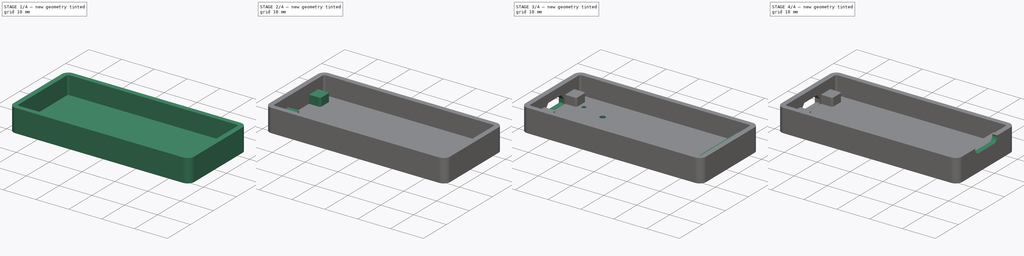
[diagram: build sequence overview — one tinted view per stage of 4, left to right]
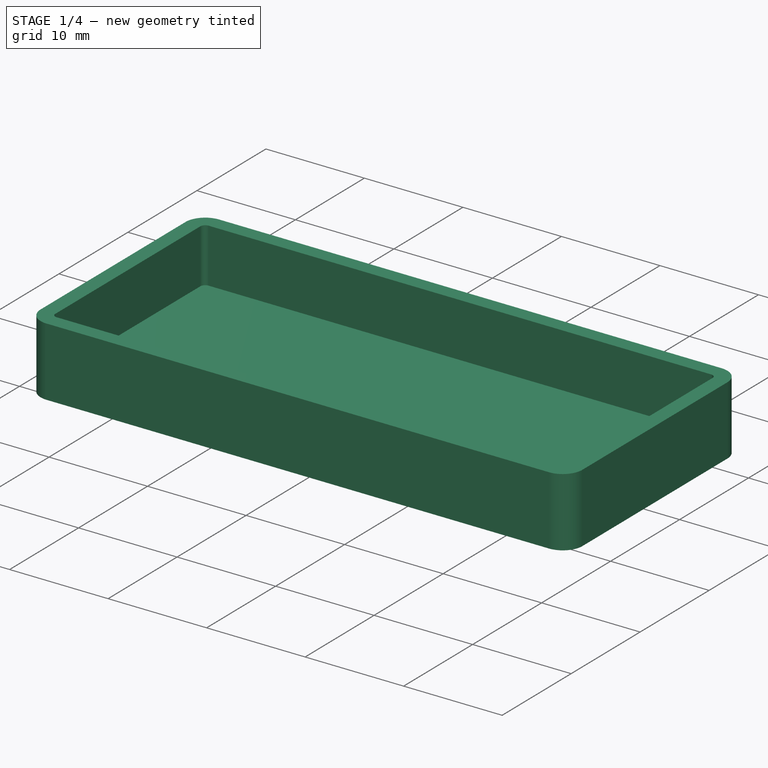
[diagram: stage 1 of 4 — iso view after this stage's code; geometry added in this stage tinted green]
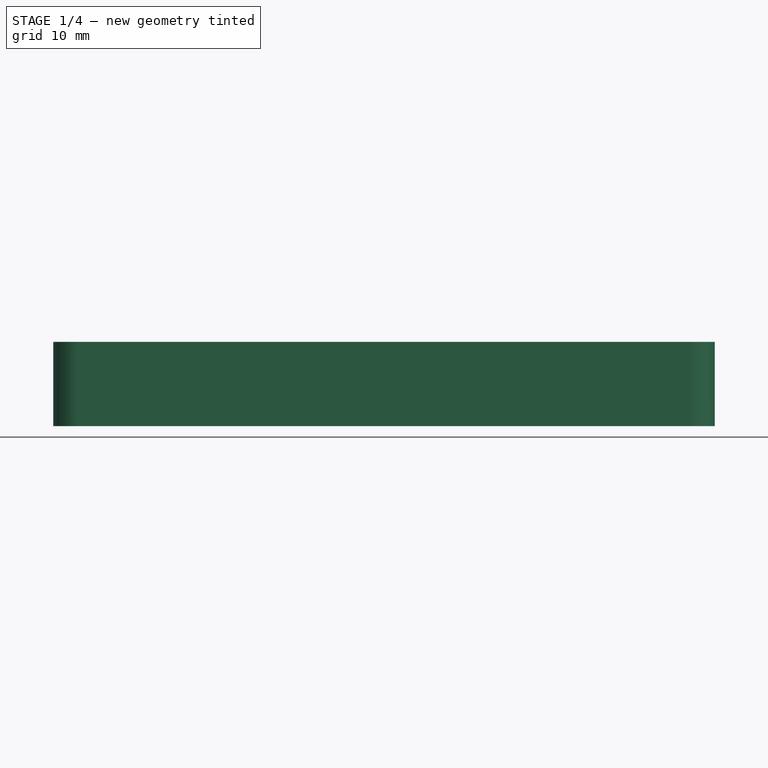
[diagram: stage 1 of 4 — front view after this stage's code; geometry added in this stage tinted green]
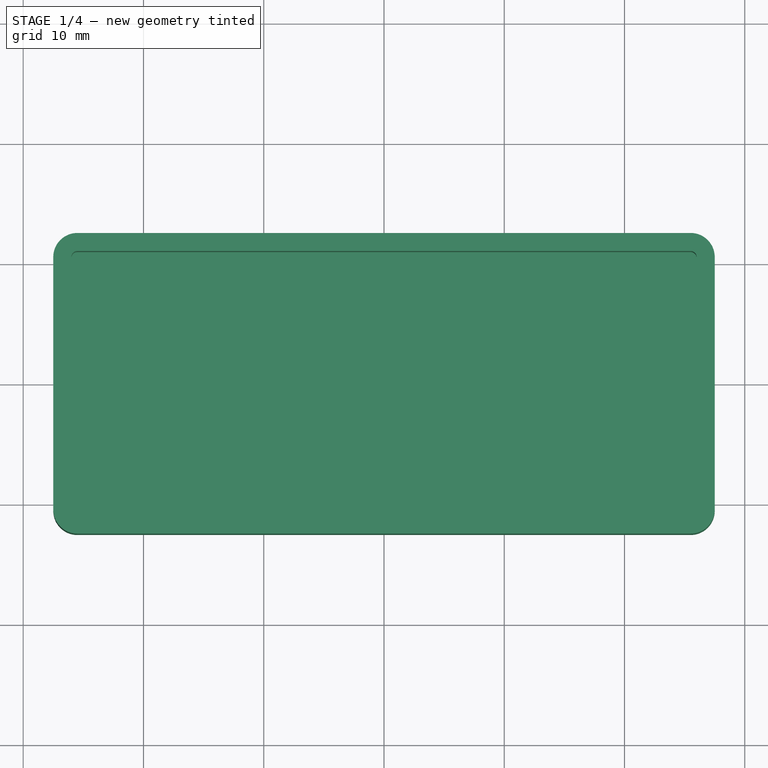
[diagram: stage 1 of 4 — top view after this stage's code; geometry added in this stage tinted green]
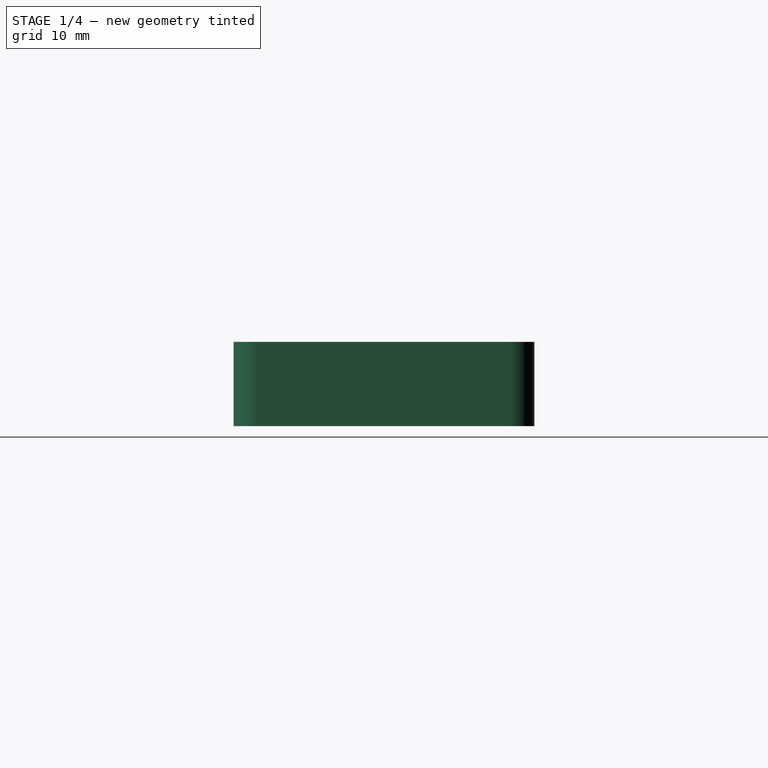
[diagram: stage 1 of 4 — right view after this stage's code; geometry added in this stage tinted green]
FCSTD DOCUMENT  (FreeCAD 0.19RUnknown)
Label: enclosure
License: All rights reserved
LicenseURL: http://en.wikipedia.org/wiki/All_rights_reserved
objects: Sketcher::SketchObject×8, PartDesign::Pad×4, PartDesign::Pocket×4, PartDesign::Body×2, Spreadsheet::Sheet×1, PartDesign::Mirrored×1, PartDesign::MultiTransform×1, Part::Feature×1, PartDesign::Chamfer×1
note: 31 computed .brp shape members not serialized (recipe doc carries the construction recipe); baked Part::Feature solids carry a one-line shape summary decoded from their .brp

FEATURE [Sketcher::SketchObject] Sketch
  AttachmentOffset = pos=(0,0,-1.5) rot=(0,0,1;0rad)
  FullyConstrained = true
  MapMode = 5
  Placement = pos=(0,0,-1.5) rot=(0,0,1;0rad)
  Support = -> [XY_Plane]
  expr: .AttachmentOffset.Base.z = -1.5
  expr: Constraints[17] = Spreadsheet.B4
  expr: Constraints[18] = Spreadsheet.B5
  expr: Constraints[16] = Spreadsheet.B2
  sketch-geometry (8):
    g0: LineSegment StartX=-25.5 StartY=12.5 StartZ=0 EndX=25.5 EndY=12.5 EndZ=0
    g1: LineSegment StartX=27.5 StartY=10.5 StartZ=0 EndX=27.5 EndY=-10.5 EndZ=0
    g2: LineSegment StartX=25.5 StartY=-12.5 StartZ=0 EndX=-25.5 EndY=-12.5 EndZ=0
    g3: LineSegment StartX=-27.5 StartY=-10.5 StartZ=0 EndX=-27.5 EndY=10.5 EndZ=0
    g4: ArcOfCircle CenterX=-25.5 CenterY=10.5 CenterZ=0 NormalX=0 NormalY=0 NormalZ=1 AngleXU=0 Radius=2 StartAngle=1.5708 EndAngle=3.14159
    g5: ArcOfCircle CenterX=25.5 CenterY=10.5 CenterZ=0 NormalX=0 NormalY=0 NormalZ=1 AngleXU=0 Radius=2 StartAngle=0 EndAngle=1.5708
    g6: ArcOfCircle CenterX=25.5 CenterY=-10.5 CenterZ=0 NormalX=0 NormalY=0 NormalZ=1 AngleXU=0 Radius=2 StartAngle=4.71239 EndAngle=6.28319
    g7: ArcOfCircle CenterX=-25.5 CenterY=-10.5 CenterZ=0 NormalX=0 NormalY=0 NormalZ=1 AngleXU=0 Radius=2 StartAngle=3.14159 EndAngle=4.71239
  constraints (19):
    c: Horizontal(g0)
    c: Horizontal(g2)
    c: Vertical(g1)
    c: Vertical(g3)
    c: Tangent(g3,g4) = 1.5708
    c: Tangent(g0,g4) = 1.5708
    c: Tangent(g0,g5) = 1.5708
    c: Tangent(g1,g5) = 1.5708
    c: Tangent(g1,g6) = 1.5708
    c: Tangent(g2,g6) = 1.5708
    c: Tangent(g2,g7) = 1.5708
    c: Tangent(g3,g7) = 1.5708
    c: Symmetric(g4,g6,g-1)
    c: Equal(g4,g5)
    c: Equal(g5,g6)
    c: Equal(g6,g7)
    c: Radius(g4) = 2
    c: DistanceX(g3,g1) = 55
    c: DistanceY(g2,g0) = 25
FEATURE [PartDesign::Pad] Pad  label="Body"
  Direction = (1,1,1)
  Length = 7
  Length2 = 100
  Profile = -> Sketch
  Type = 0
  expr: Length = Spreadsheet.B6
FEATURE [Sketcher::SketchObject] Sketch001
  FullyConstrained = true
  MapMode = 5
  Support = -> [XY_Plane]
  expr: Constraints[16] = Spreadsheet.B3
  sketch-geometry (8):
    g0: LineSegment StartX=-25.5 StartY=11 StartZ=0 EndX=25.5 EndY=11 EndZ=0
    g1: LineSegment StartX=26 StartY=10.5 StartZ=0 EndX=26 EndY=-10.5 EndZ=0
    g2: LineSegment StartX=25.5 StartY=-11 StartZ=0 EndX=-25.5 EndY=-11 EndZ=0
    g3: LineSegment StartX=-26 StartY=-10.5 StartZ=0 EndX=-26 EndY=10.5 EndZ=0
    g4: ArcOfCircle CenterX=-25.5 CenterY=10.5 CenterZ=0 NormalX=0 NormalY=0 NormalZ=1 AngleXU=0 Radius=0.5 StartAngle=1.5708 EndAngle=3.14159
    g5: ArcOfCircle CenterX=25.5 CenterY=10.5 CenterZ=0 NormalX=0 NormalY=0 NormalZ=1 AngleXU=0 Radius=0.5 StartAngle=1.9e-15 EndAngle=1.5708
    g6: ArcOfCircle CenterX=25.5 CenterY=-10.5 CenterZ=0 NormalX=0 NormalY=0 NormalZ=1 AngleXU=0 Radius=0.5 StartAngle=4.71239 EndAngle=6.28319
    g7: ArcOfCircle CenterX=-25.5 CenterY=-10.5 CenterZ=0 NormalX=0 NormalY=0 NormalZ=1 AngleXU=0 Radius=0.5 StartAngle=3.14159 EndAngle=4.71239
  constraints (19):
    c: Horizontal(g0)
    c: Horizontal(g2)
    c: Vertical(g1)
    c: Vertical(g3)
    c: Tangent(g3,g4) = 1.5708
    c: Tangent(g0,g4) = 1.5708
    c: Tangent(g0,g5) = 1.5708
    c: Tangent(g1,g5) = 1.5708
    c: Tangent(g1,g6) = 1.5708
    c: Tangent(g2,g6) = 1.5708
    c: Tangent(g2,g7) = 1.5708
    c: Tangent(g3,g7) = 1.5708
    c: Symmetric(g4,g6,g-1)
    c: Equal(g4,g5)
    c: Equal(g5,g7)
    c: Equal(g7,g6)
    c: Radius(g4) = 0.5
    c: DistanceX(g3,g1) = 52
    c: DistanceY(g2,g0) = 22
FEATURE [PartDesign::Pocket] Pocket  label="Body-Pocket"
  BaseFeature = -> Pad
  Length = 5
  Length2 = 100
  Profile = -> Sketch001
  Reversed = true
  Type = 1
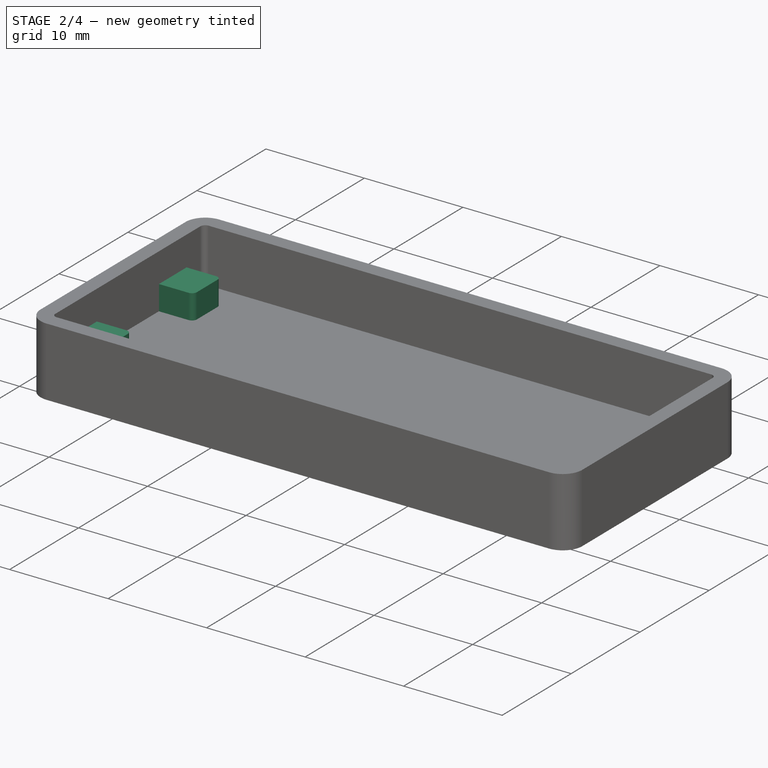
[diagram: stage 2 of 4 — iso view after this stage's code; geometry added in this stage tinted green]
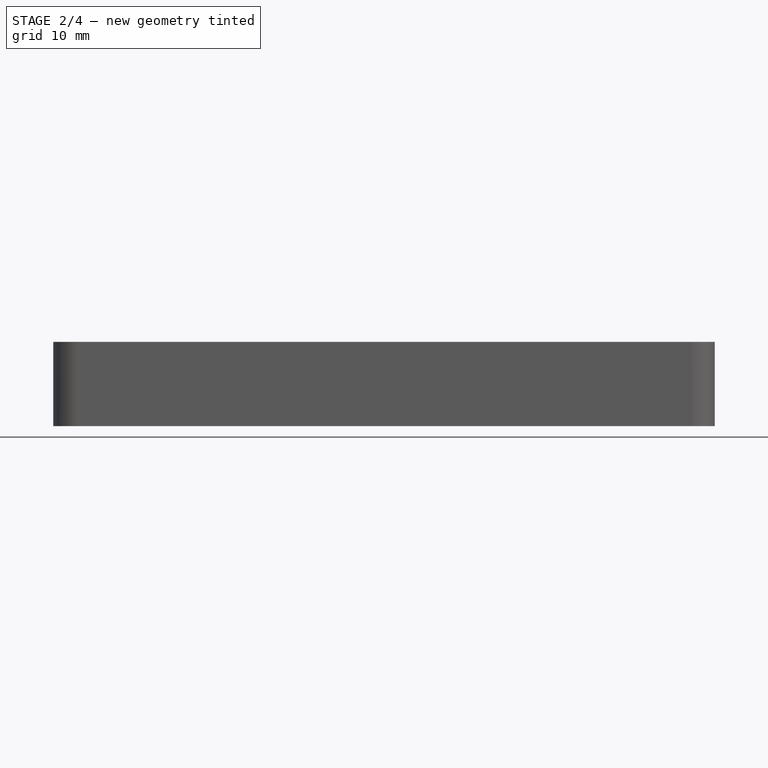
[diagram: stage 2 of 4 — front view after this stage's code; geometry added in this stage tinted green]
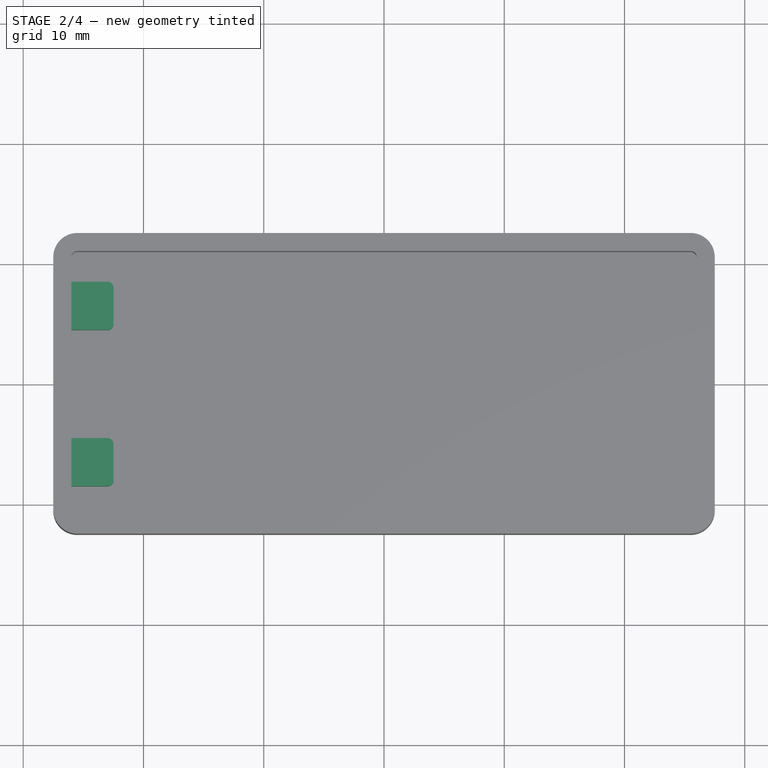
[diagram: stage 2 of 4 — top view after this stage's code; geometry added in this stage tinted green]
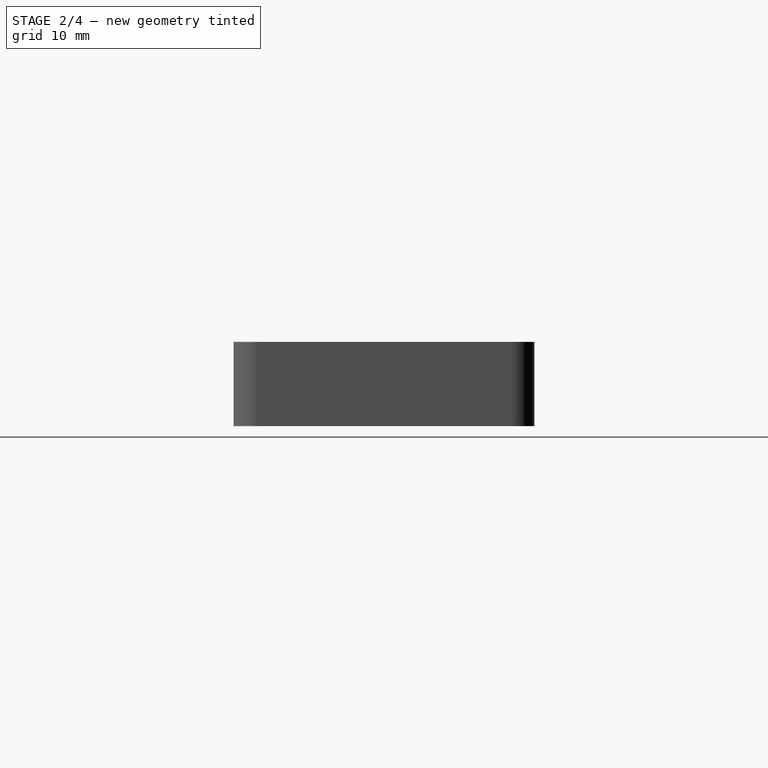
[diagram: stage 2 of 4 — right view after this stage's code; geometry added in this stage tinted green]
FEATURE [Spreadsheet::Sheet] Spreadsheet
  cells = A1=wall_thickness; B1(wall_thickness)=1.5; A2=radius; B2=2; A3=inside_radius; B3==B2 - B1; A4=outside_width; B4==2 * B1 + 52; A5=outside_height; B5==2 * B1 + 22; A6=depth; B6=7; A7=lug_offset; B7=2.5
FEATURE [Sketcher::SketchObject] Sketch002
  FullyConstrained = false
  MapMode = 5
  Support = -> [XY_Plane]
  expr: Constraints[11] = Spreadsheet.B3
  sketch-geometry (6):
    g0: LineSegment StartX=-25.9941 StartY=8.5 StartZ=0 EndX=-22.9941 EndY=8.5 EndZ=0
    g1: LineSegment StartX=-22.4941 StartY=8 StartZ=0 EndX=-22.4941 EndY=5 EndZ=0
    g2: LineSegment StartX=-22.9941 StartY=4.5 StartZ=0 EndX=-25.9941 EndY=4.5 EndZ=0
    g3: LineSegment StartX=-25.9941 StartY=4.5 StartZ=0 EndX=-25.9941 EndY=8.5 EndZ=0
    g4: ArcOfCircle CenterX=-22.9941 CenterY=5 CenterZ=0 NormalX=0 NormalY=0 NormalZ=1 AngleXU=0 Radius=0.5 StartAngle=4.71239 EndAngle=6.28319
    g5: ArcOfCircle CenterX=-22.9941 CenterY=8 CenterZ=0 NormalX=0 NormalY=0 NormalZ=1 AngleXU=0 Radius=0.5 StartAngle=4e-16 EndAngle=1.5708
  constraints (15):
    c: Coincident(g2,g3)
    c: Coincident(g3,g0)
    c: Horizontal(g0)
    c: Horizontal(g2)
    c: Vertical(g1)
    c: Vertical(g3)
    c: Tangent(g1,g4) = 1.5708
    c: Tangent(g2,g4) = 1.5708
    c: DistanceX(g2,g1) = 3.5
    c: DistanceY(g2,g0) = 4
    c: DistanceY(g-1,g2) = 4.5
    c: Radius(g4) = 0.5
    c: Tangent(g0,g5) = 1.5708
    c: Tangent(g1,g5) = 1.5708
    c: Equal(g5,g4)
FEATURE [PartDesign::Pad] Pad001
  BaseFeature = -> Pocket
  Direction = (1,1,1)
  Length = 2.5
  Length2 = 100
  Profile = -> Sketch002
  Type = 0
FEATURE [PartDesign::Mirrored] Mirrored
  MirrorPlane = -> XZ_Plane
FEATURE [PartDesign::MultiTransform] MultiTransform
  BaseFeature = -> Pad001
  Originals = -> [Pad001]
  Transformations = -> [Mirrored]
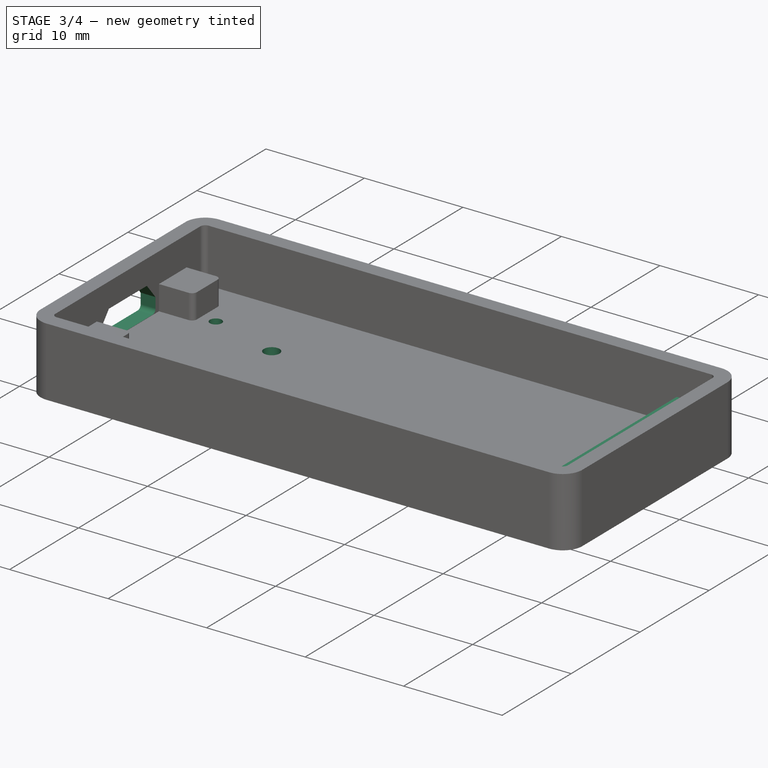
[diagram: stage 3 of 4 — iso view after this stage's code; geometry added in this stage tinted green]
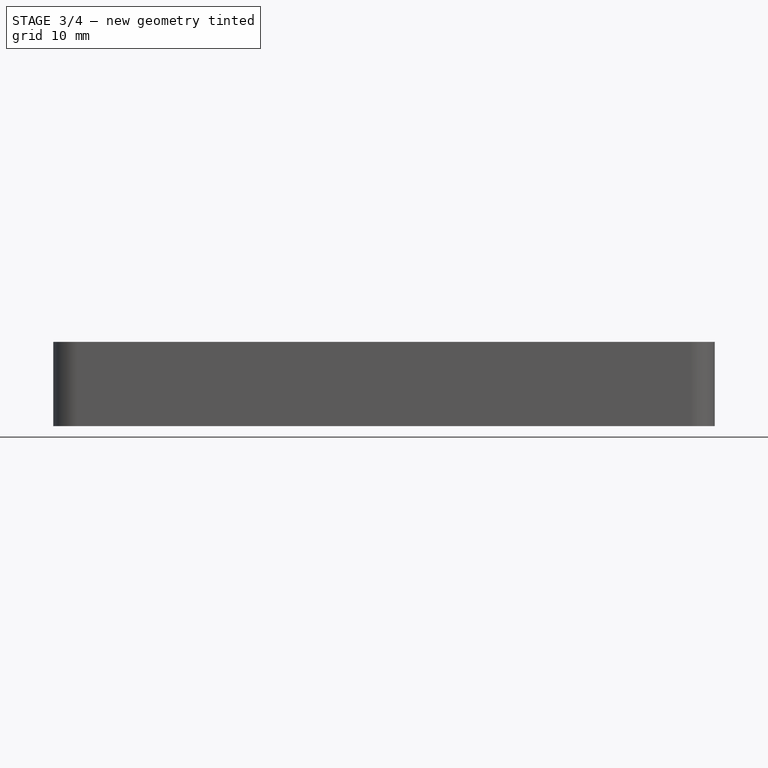
[diagram: stage 3 of 4 — front view after this stage's code; geometry added in this stage tinted green]
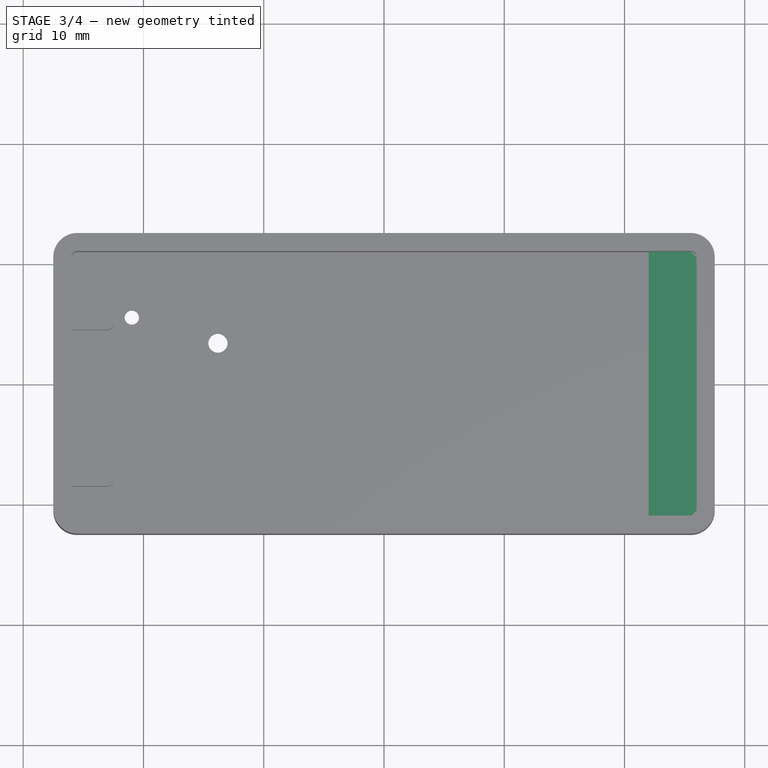
[diagram: stage 3 of 4 — top view after this stage's code; geometry added in this stage tinted green]
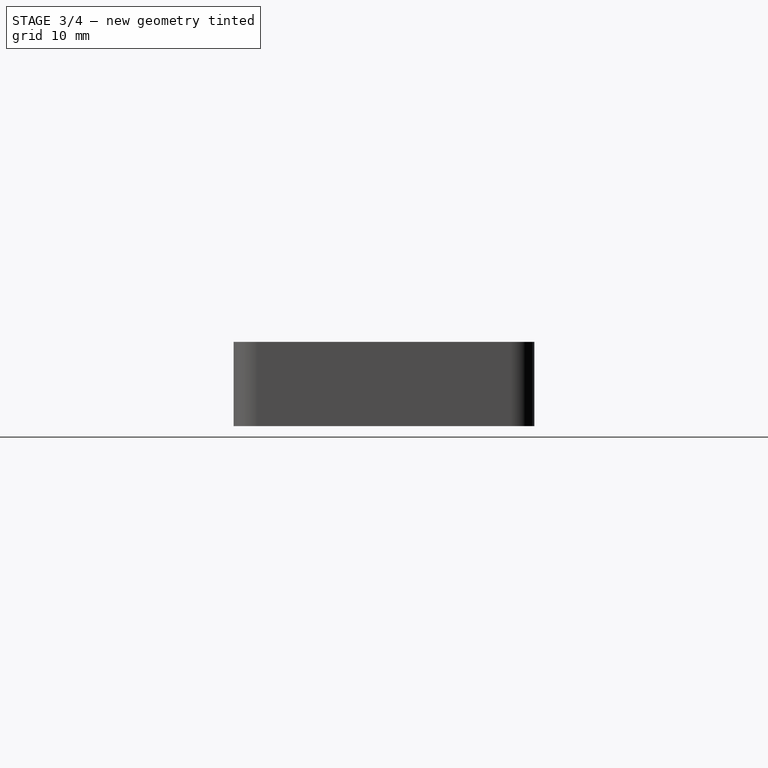
[diagram: stage 3 of 4 — right view after this stage's code; geometry added in this stage tinted green]
FEATURE [Sketcher::SketchObject] Sketch003
  FullyConstrained = false
  MapMode = 5
  Placement = pos=(-27.5,0,0) rot=(0.57735,-0.57735,-0.57735;2.0944rad)
  Support = -> [MultiTransform]
  sketch-geometry (8):
    g0: LineSegment StartX=-2.75 StartY=3 StartZ=0 EndX=2.75 EndY=3 EndZ=0
    g1: LineSegment StartX=2.75 StartY=3 StartZ=0 EndX=4 EndY=1.5 EndZ=0
    g2: LineSegment StartX=4 StartY=1.5 StartZ=0 EndX=4 EndY=0.457199 EndZ=0
    g3: LineSegment StartX=3.57155 StartY=0.0287443 StartZ=0 EndX=-3.57155 EndY=0.0287443 EndZ=0
    g4: LineSegment StartX=-4 StartY=0.457199 StartZ=0 EndX=-4 EndY=1.5 EndZ=0
    g5: LineSegment StartX=-4 StartY=1.5 StartZ=0 EndX=-2.75 EndY=3 EndZ=0
    g6: ArcOfCircle CenterX=-3.57155 CenterY=0.457199 CenterZ=0 NormalX=0 NormalY=0 NormalZ=1 AngleXU=0 Radius=0.428454 StartAngle=3.14159 EndAngle=4.71239
    g7: ArcOfCircle CenterX=3.57155 CenterY=0.457199 CenterZ=0 NormalX=0 NormalY=0 NormalZ=1 AngleXU=0 Radius=0.428454 StartAngle=4.71239 EndAngle=6.28319
  constraints (20):
    c: Horizontal(g0)
    c: Coincident(g1,g0)
    c: Coincident(g2,g1)
    c: Vertical(g2)
    c: Horizontal(g3)
    c: Coincident(g5,g4)
    c: Coincident(g5,g0)
    c: DistanceX(g0,g0) = 5.5
    c: DistanceY(g1,g1) = 1.5
    c: Equal(g1,g5)
    c: Parallel(g4,g2)
    c: Equal(g2,g4)
    c: DistanceY(g-1,g0) = 3
    c: Tangent(g4,g6) = 1.5708
    c: Tangent(g3,g6) = 1.5708
    c: Tangent(g3,g7) = 1.5708
    c: Tangent(g2,g7) = 1.5708
    c: Equal(g6,g7)
    c: DistanceX(g4,g2) = 8
    c: DistanceX(g4,g-1) = 4
FEATURE [PartDesign::Pocket] Pocket001
  BaseFeature = -> MultiTransform
  Length = 1.5
  Length2 = 100
  Profile = -> Sketch003
  Type = 0
  expr: Length = Spreadsheet.B1
FEATURE [Part::Feature] Feature  label="Pico-R3"
  Placement = pos=(25.2,10.4,3.1) rot=(0.57735,-0.57735,0.57735;4.18879rad)
  shape: bbox 52.3 x 21 x 3.73 mm, 604 faces, 17 solids (baked)
FEATURE [Sketcher::SketchObject] Sketch004
  FullyConstrained = true
  sketch-geometry (4):
    g0: LineSegment StartX=22 StartY=11 StartZ=0 EndX=26 EndY=11 EndZ=0
    g1: LineSegment StartX=26 StartY=11 StartZ=0 EndX=26 EndY=-11 EndZ=0
    g2: LineSegment StartX=26 StartY=-11 StartZ=0 EndX=22 EndY=-11 EndZ=0
    g3: LineSegment StartX=22 StartY=-11 StartZ=0 EndX=22 EndY=11 EndZ=0
  constraints (12):
    c: Coincident(g0,g1)
    c: Coincident(g1,g2)
    c: Coincident(g2,g3)
    c: Coincident(g3,g0)
    c: Horizontal(g0)
    c: Horizontal(g2)
    c: Vertical(g1)
    c: Vertical(g3)
    c: DistanceX(g0,g0) = 4
    c: DistanceY(g1,g1) = 22
    c: DistanceY(g-1,g0) = 11
    c: DistanceX(g-1,g2) = 22
FEATURE [PartDesign::Pad] Pad002
  BaseFeature = -> Pocket001
  Direction = (1,1,1)
  Length = 2.5
  Length2 = 100
  Profile = -> Sketch004
  Type = 0
FEATURE [Sketcher::SketchObject] Sketch005
  FullyConstrained = false
  MapMode = 5
  Support = -> [XY_Plane]
  sketch-geometry (2):
    g0: Circle CenterX=-20.9672 CenterY=5.5696 CenterZ=0 NormalX=0 NormalY=0 NormalZ=1 AngleXU=0 Radius=0.6
    g1: Circle CenterX=-13.8068 CenterY=3.4399 CenterZ=0 NormalX=0 NormalY=0 NormalZ=1 AngleXU=0 Radius=0.8
  constraints (2):
    c: Radius(g0) = 0.6
    c: Radius(g1) = 0.8
FEATURE [PartDesign::Pocket] Pocket002
  BaseFeature = -> Pad002
  Length = 5
  Length2 = 100
  Profile = -> Sketch005
  Type = 0
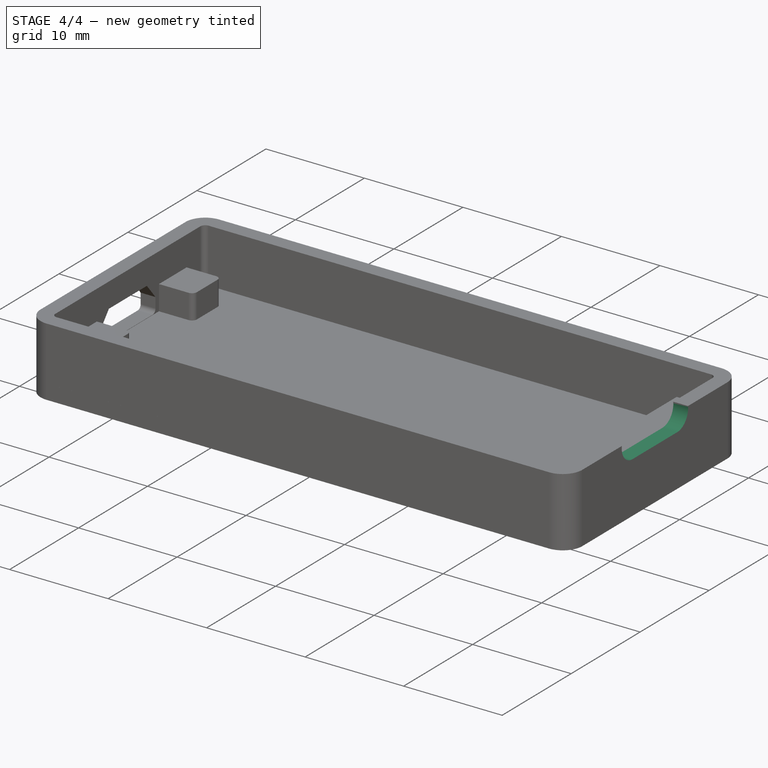
[diagram: stage 4 of 4 — iso view after this stage's code; geometry added in this stage tinted green]
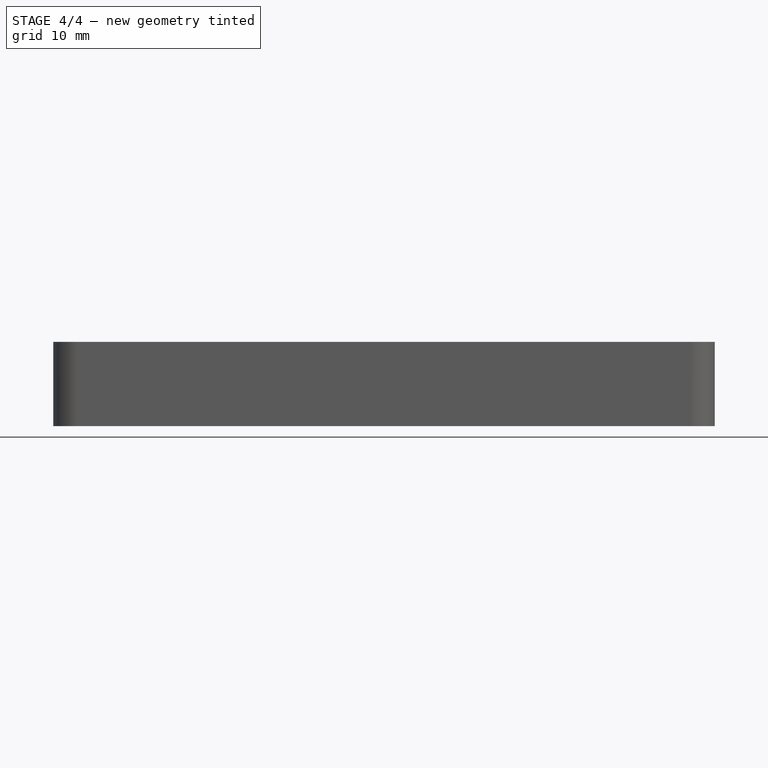
[diagram: stage 4 of 4 — front view after this stage's code; geometry added in this stage tinted green]
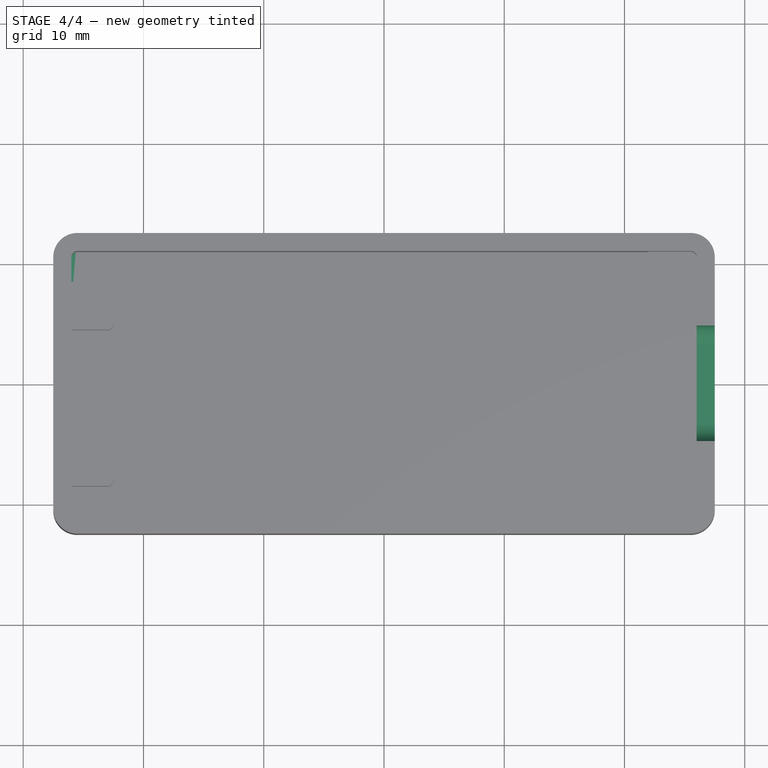
[diagram: stage 4 of 4 — top view after this stage's code; geometry added in this stage tinted green]
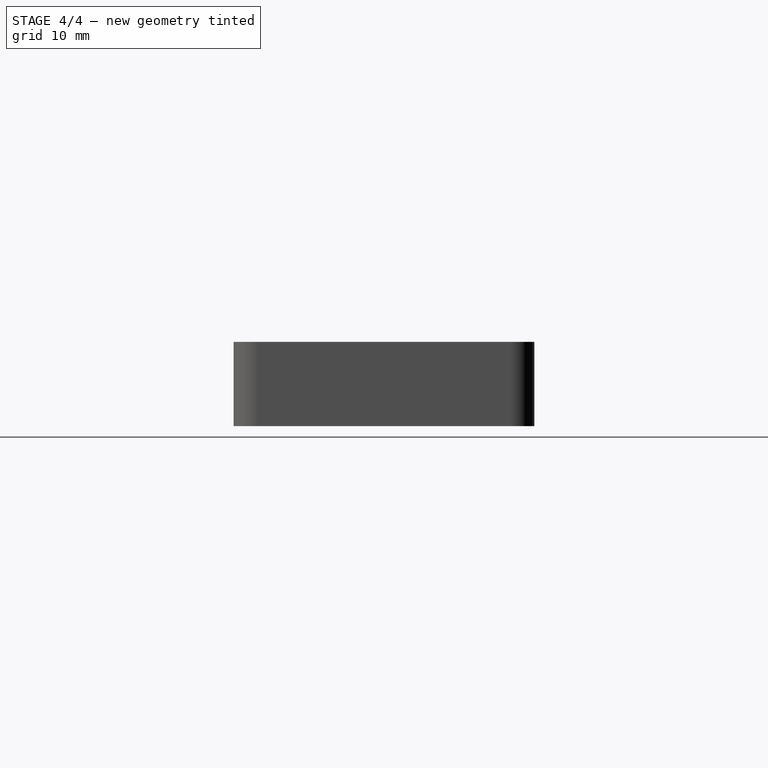
[diagram: stage 4 of 4 — right view after this stage's code; geometry added in this stage tinted green]
FEATURE [Sketcher::SketchObject] Sketch006
  FullyConstrained = false
  MapMode = 5
  Placement = pos=(27.5,0,0) rot=(0.57735,0.57735,0.57735;2.0944rad)
  Support = -> [Pocket002]
  sketch-geometry (4):
    g0: LineSegment StartX=-4.8 StartY=5.5 StartZ=0 EndX=4.8 EndY=5.5 EndZ=0
    g1: LineSegment StartX=-3.22605 StartY=3.7 StartZ=0 EndX=3.22605 EndY=3.7 EndZ=0
    g2: ArcOfCircle CenterX=-3.22605 CenterY=5.28814 CenterZ=0 NormalX=0 NormalY=0 NormalZ=1 AngleXU=0 Radius=1.58814 StartAngle=3.0078 EndAngle=4.71239
    g3: ArcOfCircle CenterX=3.22605 CenterY=5.28814 CenterZ=0 NormalX=0 NormalY=0 NormalZ=1 AngleXU=0 Radius=1.58814 StartAngle=4.71239 EndAngle=6.41698
  constraints (13):
    c: Horizontal(g0)
    c: Horizontal(g1)
    c: Coincident(g2,g1)
    c: Coincident(g2,g0)
    c: Coincident(g3,g0)
    c: Coincident(g3,g1)
    c: DistanceX(g0,g0) = 9.6
    c: Vertical(g3,g1)
    c: Vertical(g2,g1)
    c: DistanceX(g0,g-1) = 4.8
    c: Equal(g2,g3)
    c: DistanceY(g1,g0) = 1.8
    c: DistanceY(g-1,g1) = 3.7
FEATURE [PartDesign::Pocket] Pocket003
  BaseFeature = -> Pocket002
  Length = 1.5
  Length2 = 100
  Profile = -> Sketch006
  Type = 0
  expr: Length = Spreadsheet.wall_thickness
FEATURE [Sketcher::SketchObject] Sketch007
  AttachmentOffset = pos=(0,0,-1.5) rot=(0,0,1;0rad)
  FullyConstrained = true
  MapMode = 5
  Placement = pos=(0,0,-1.5) rot=(0,0,1;0rad)
  Support = -> [XY_Plane001]
  expr: Constraints[16] = Spreadsheet.B2
  expr: Constraints[18] = Spreadsheet.B5
  expr: Constraints[17] = Spreadsheet.B4
  expr: .AttachmentOffset.Base.z = -1.5
  sketch-geometry (8):
    g0: LineSegment StartX=-25.5 StartY=12.5 StartZ=0 EndX=25.5 EndY=12.5 EndZ=0
    g1: LineSegment StartX=27.5 StartY=10.5 StartZ=0 EndX=27.5 EndY=-10.5 EndZ=0
    g2: LineSegment StartX=25.5 StartY=-12.5 StartZ=0 EndX=-25.5 EndY=-12.5 EndZ=0
    g3: LineSegment StartX=-27.5 StartY=-10.5 StartZ=0 EndX=-27.5 EndY=10.5 EndZ=0
    g4: ArcOfCircle CenterX=-25.5 CenterY=10.5 CenterZ=0 NormalX=0 NormalY=0 NormalZ=1 AngleXU=0 Radius=2 StartAngle=1.5708 EndAngle=3.14159
    g5: ArcOfCircle CenterX=25.5 CenterY=10.5 CenterZ=0 NormalX=0 NormalY=0 NormalZ=1 AngleXU=0 Radius=2 StartAngle=0 EndAngle=1.5708
    g6: ArcOfCircle CenterX=25.5 CenterY=-10.5 CenterZ=0 NormalX=0 NormalY=0 NormalZ=1 AngleXU=0 Radius=2 StartAngle=4.71239 EndAngle=6.28319
    g7: ArcOfCircle CenterX=-25.5 CenterY=-10.5 CenterZ=0 NormalX=0 NormalY=0 NormalZ=1 AngleXU=0 Radius=2 StartAngle=3.14159 EndAngle=4.71239
  constraints (19):
    c: Horizontal(g0)
    c: Horizontal(g2)
    c: Vertical(g1)
    c: Vertical(g3)
    c: Tangent(g3,g4) = 1.5708
    c: Tangent(g0,g4) = 1.5708
    c: Tangent(g0,g5) = 1.5708
    c: Tangent(g1,g5) = 1.5708
    c: Tangent(g1,g6) = 1.5708
    c: Tangent(g2,g6) = 1.5708
    c: Tangent(g2,g7) = 1.5708
    c: Tangent(g3,g7) = 1.5708
    c: Symmetric(g4,g6,g-1)
    c: Equal(g4,g5)
    c: Equal(g5,g6)
    c: Equal(g6,g7)
    c: Radius(g4) = 2
    c: DistanceX(g3,g1) = 55
    c: DistanceY(g2,g0) = 25
FEATURE [PartDesign::Pad] Pad003
  Direction = (1,1,1)
  Length = 1.5
  Length2 = 100
  Profile = -> Sketch007
  Type = 0
  expr: Length = Spreadsheet.wall_thickness
FEATURE [PartDesign::Body] Body001  label="Lid"
  Group = -> [Sketch007,Pad003]
  Origin = -> Origin001
  Placement = pos=(0,0,7) rot=(0,0,1;0rad)
  Tip = -> Pad003
FEATURE [PartDesign::Chamfer] Chamfer
  Angle = 45
  Base = -> Pocket003 [Face33]
  BaseFeature = -> Pocket003
  ChamferType = 0
  FlipDirection = false
  Size = 1
  Size2 = 1
  SupportTransform = false
FEATURE [PartDesign::Body] Body  label="Case"
  Group = -> [Sketch,Pad,Sketch001,Pocket,Sketch002,Pad001,MultiTransform,Mirrored,Sketch003,Pocket001,Sketch004,Pad002,Sketch005,Pocket002,Sketch006,Pocket003,Chamfer]
  Origin = -> Origin
  Tip = -> Chamfer
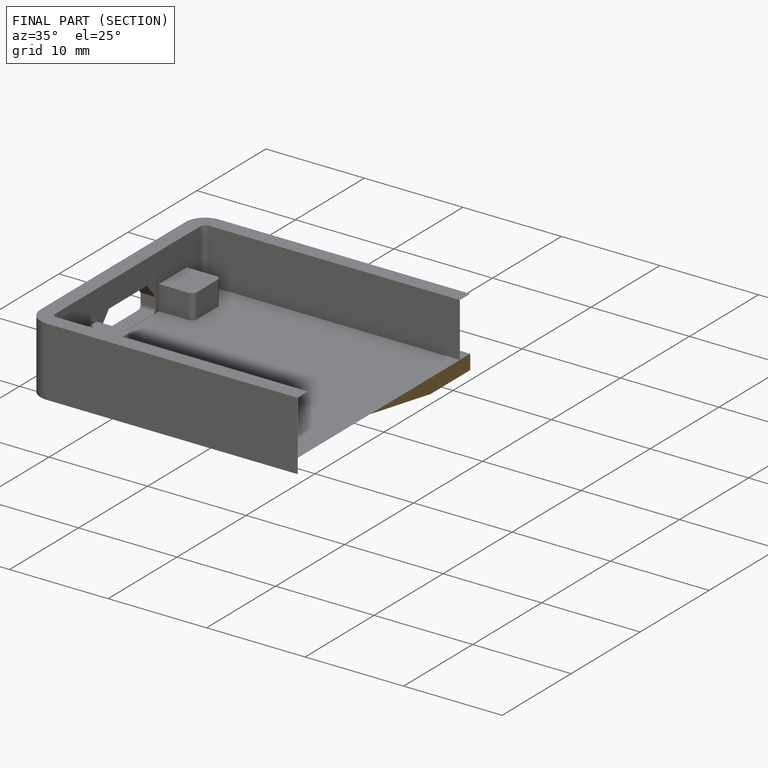
[diagram: finished part — half-section view (interior)]
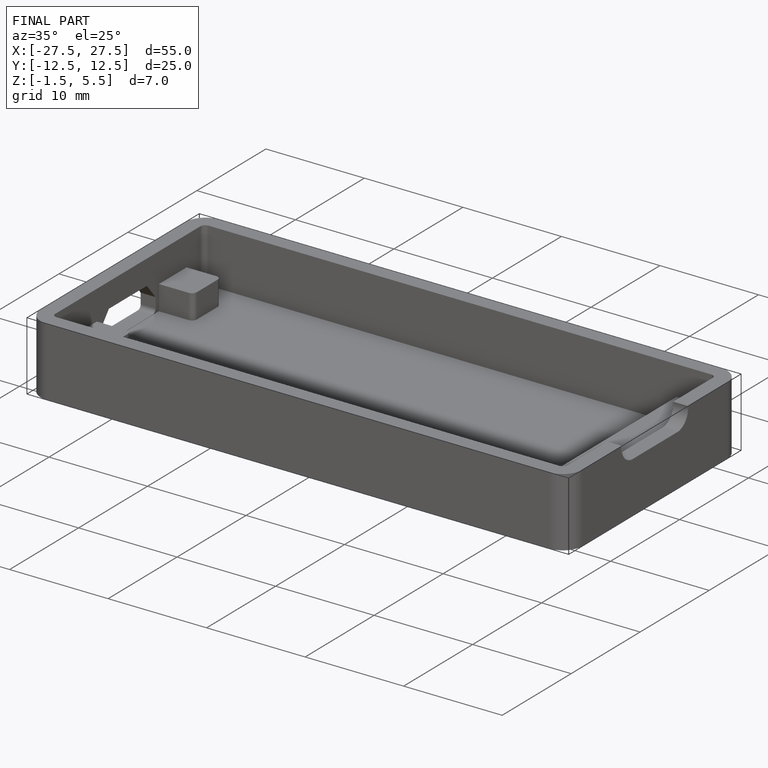
[diagram: finished part — iso view with bounding-box wireframe]
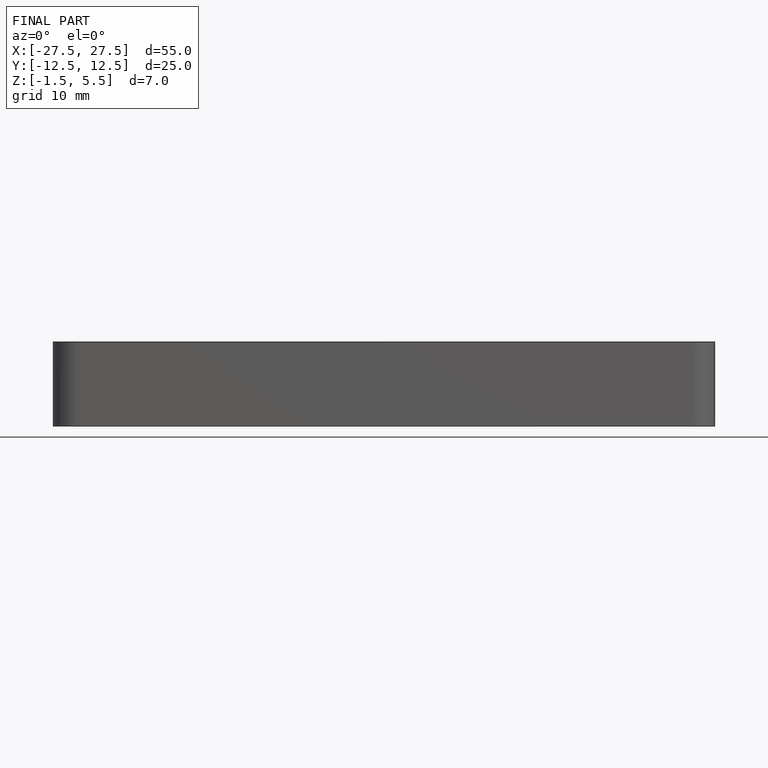
[diagram: finished part — front view with bounding-box wireframe]
